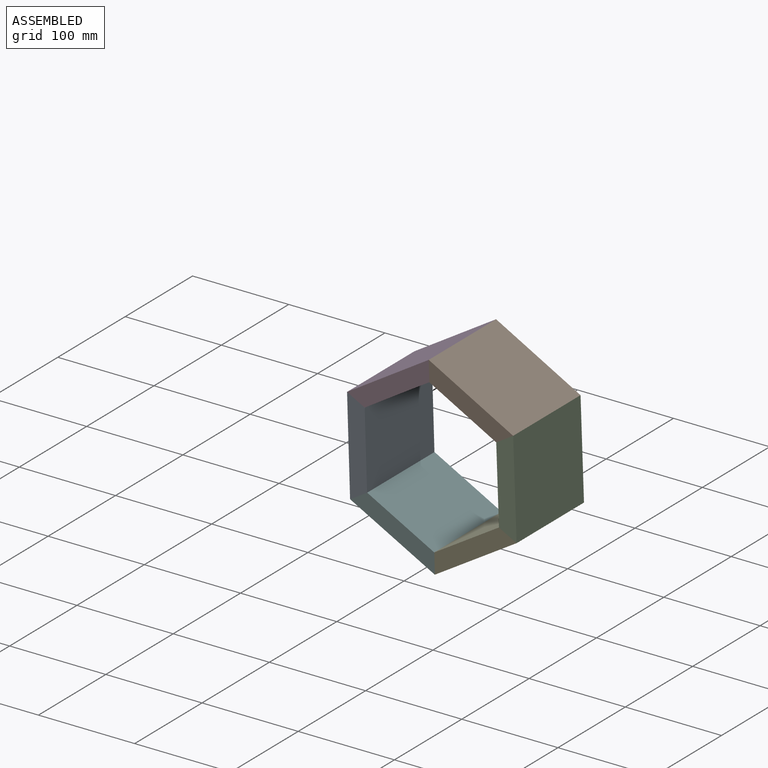
[diagram: assembled view]
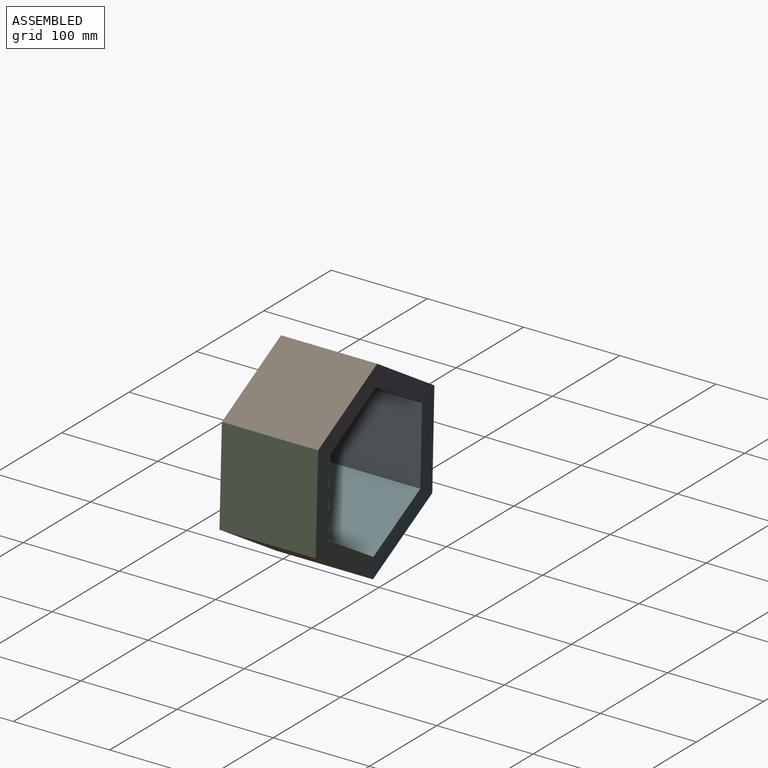
[diagram: assembled view, second angle]
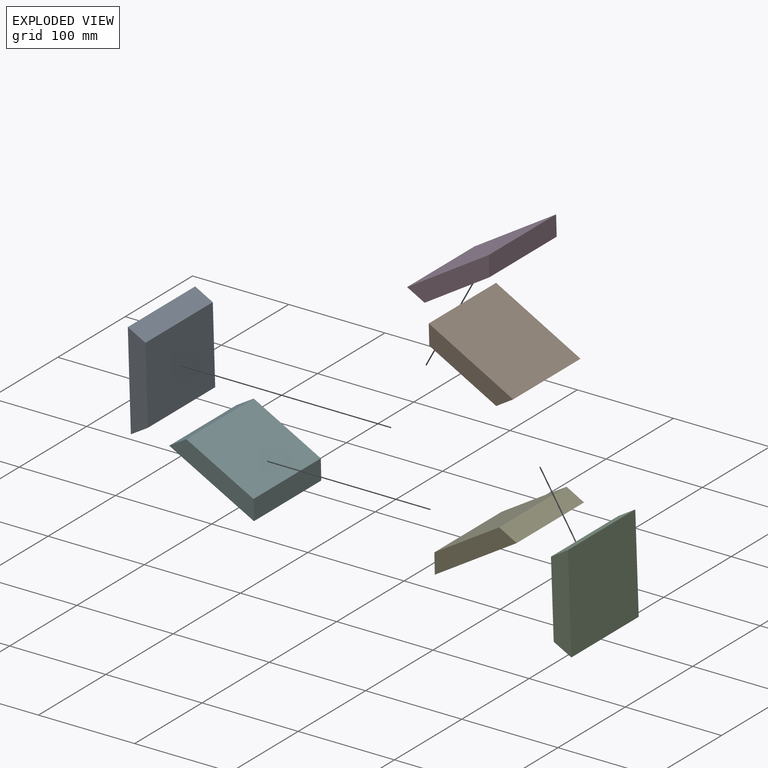
[diagram: exploded view]
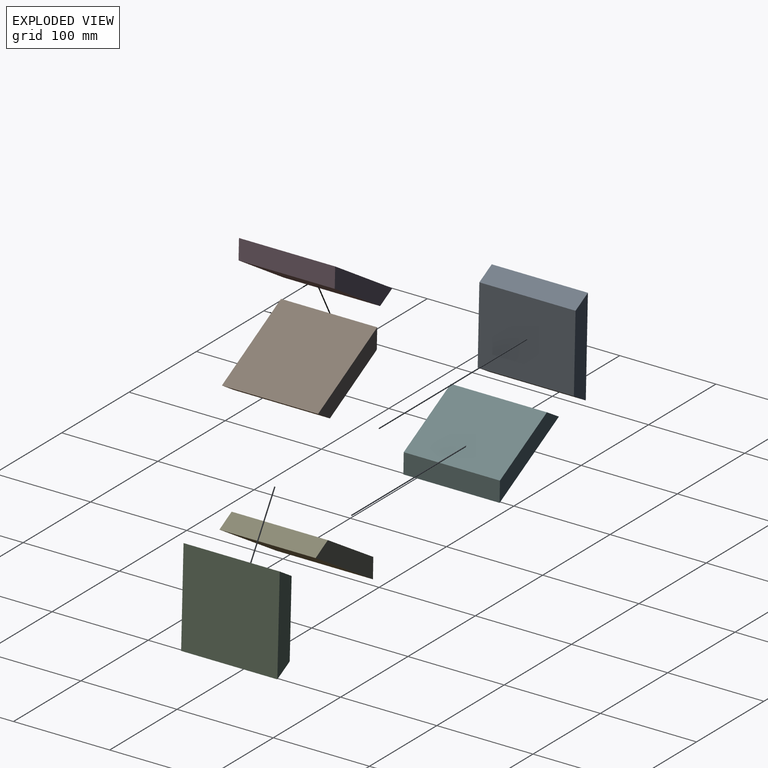
[diagram: exploded view, second angle]
ASSEMBLY  parts=6 mates=5
PART A: 6 faces, bbox 18x100x100 mm
  f0: plane 100x79.25mm, normal (1,0,0), area 7925mm2, adj f1,f2,f4,f5
  f1: plane 100x18mm, normal (0,-1,0), area 1613.3mm2, adj f0,f3,f4,f5
  f2: plane 100x18mm, normal (0,1,0), area 1613.3mm2, adj f0,f3,f4,f5
  f3: plane 100x100mm, normal (-1,0,0), area 10000mm2, adj f1,f2,f4,f5
  f4: plane 100x18mm, normal (0.49,0,-0.87), area 2071.4mm2, adj f0,f1,f2,f3
  f5: plane 100x18mm, normal (0.5,0,0.86), area 2083.9mm2, adj f0,f1,f2,f3
PART B: same geometry as A
PART C: same geometry as A
PART D: same geometry as A
PART E: same geometry as A
PART F: same geometry as A
PLACE A rot(axis=(0,-1,0),1.8deg) t=(18.98,43.63,11.55)mm
PLACE B rot(axis=(0.51,0,-0.86),180deg) t=(81.76,-56.37,50.77)mm
PLACE C rot(axis=(0,1,0),177.9deg) t=(117.55,43.63,-7.13)mm
PLACE D rot(axis=(0,1,0),58.1deg) t=(51.45,43.63,49.9)mm
PLACE E rot(axis=(0,-1,0),121.6deg) t=(85.32,43.63,-44.87)mm
PLACE F rot(axis=(0,-1,0),61.7deg) t=(35.89,43.63,-35.78)mm
MATE fastened C.f4 <-> B.f4  axis (-0.53,0,0.85) through (152.89,-6.37,54.72)mm
MATE fastened D.f4 <-> A.f5  axis (-0.48,0,-0.88) through (-19.79,-6.37,49.8)mm
MATE fastened E.f5 <-> F.f4  axis (-1,0,-0.02) through (71.43,-6.37,-97.53)mm
MATE fastened F.f5 <-> A.f4  axis (-0.52,0,0.85) through (-16.64,-6.37,-50.15)mm
MATE fastened D.f5 <-> B.f5  axis (1,0,0.03) through (65.11,-6.37,102.63)mm
